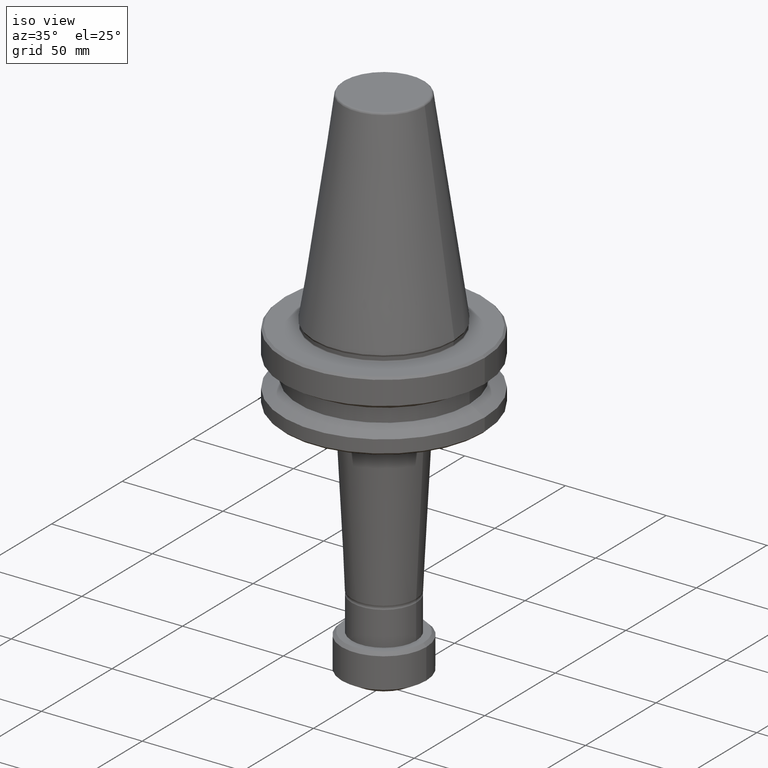
[diagram: clean part render]
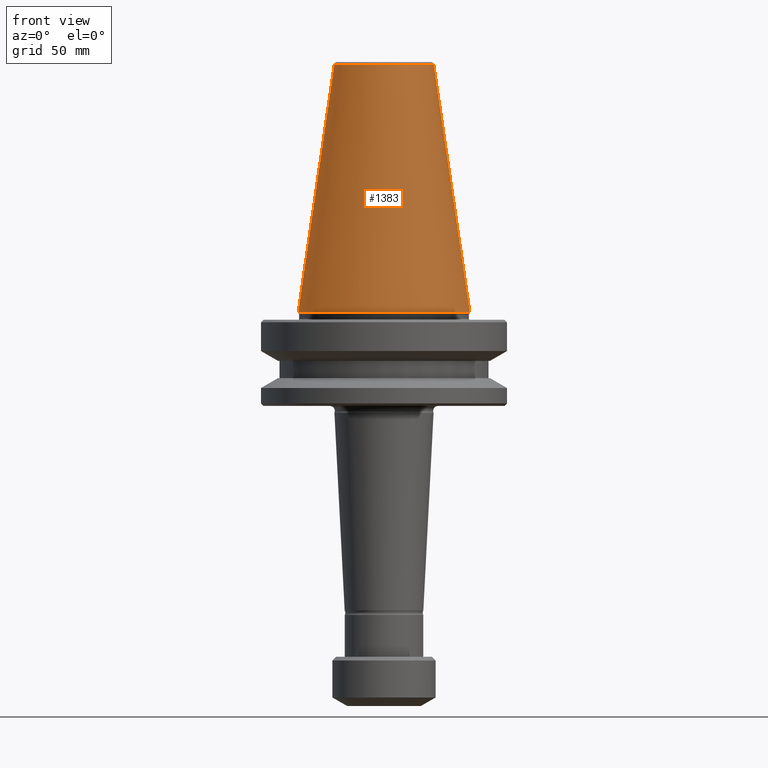
[diagram: tour spotlight — one face highlighted and labeled with its STEP entity id]
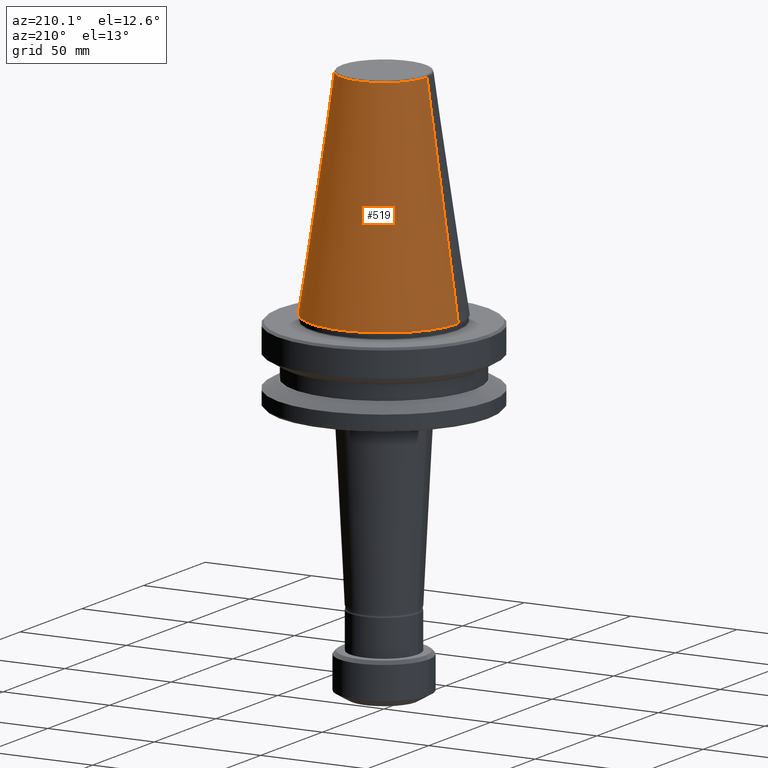
[diagram: tour spotlight — one face highlighted and labeled with its STEP entity id]
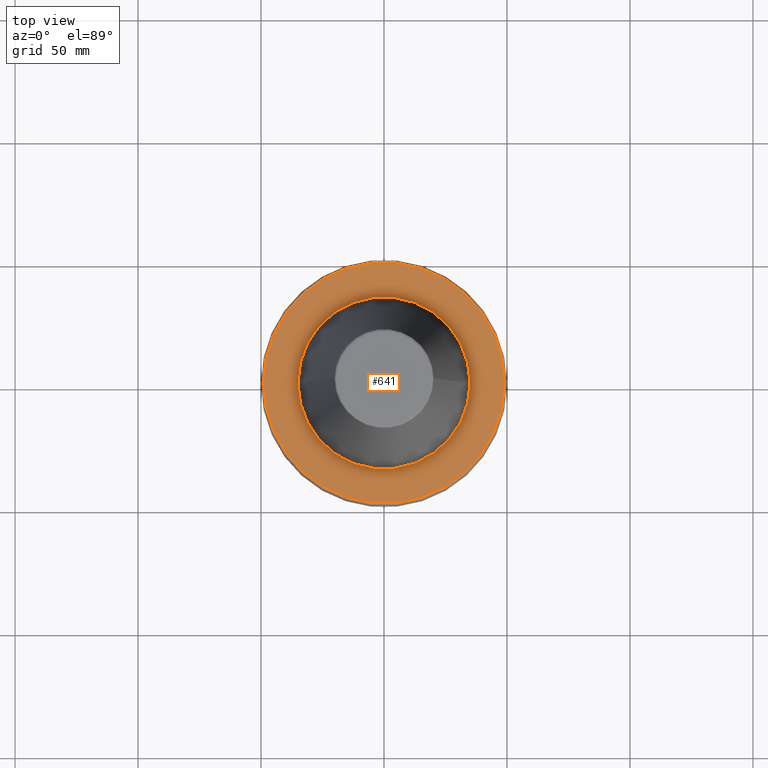
[diagram: tour spotlight — one face highlighted and labeled with its STEP entity id]
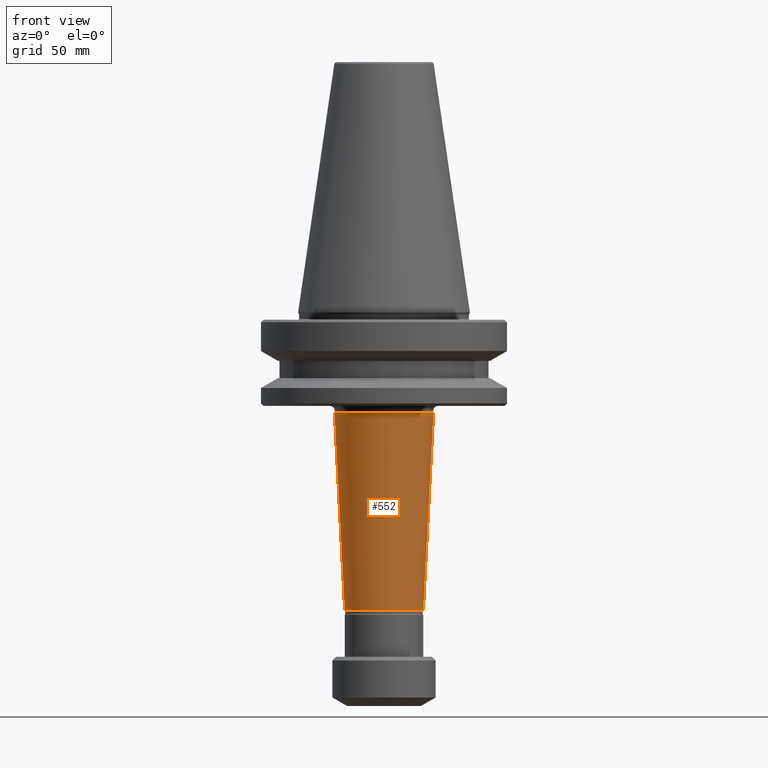
[diagram: tour spotlight — one face highlighted and labeled with its STEP entity id]
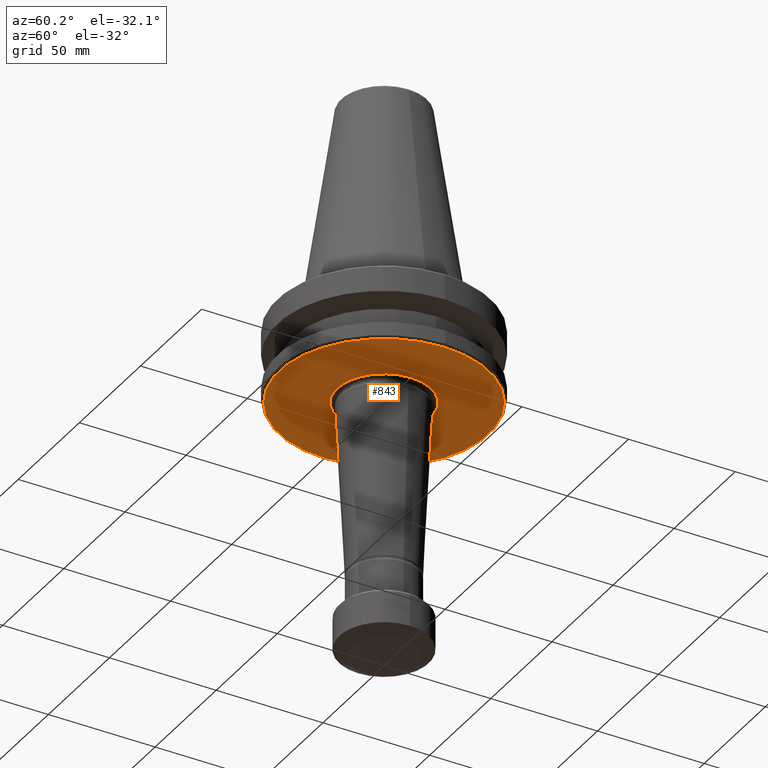
[diagram: tour spotlight — one face highlighted and labeled with its STEP entity id]
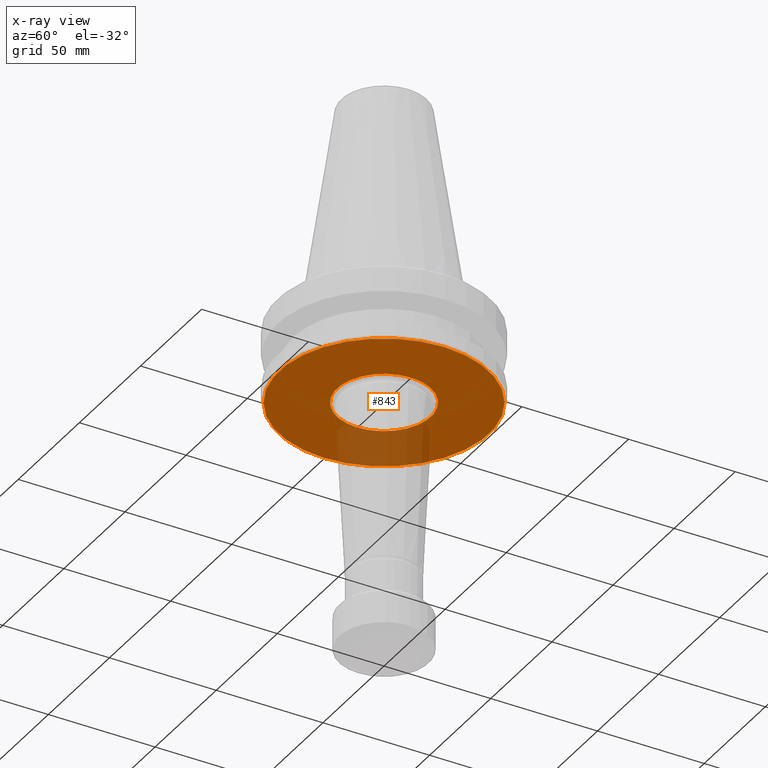
[diagram: x-ray of the same camera — body ghosted, this tour face saturated]
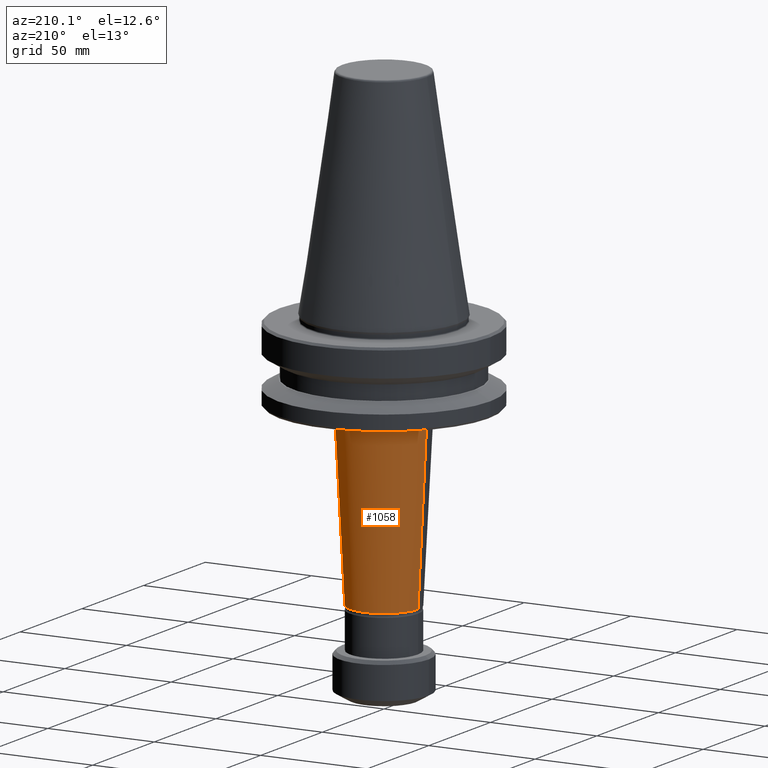
[diagram: tour spotlight — one face highlighted and labeled with its STEP entity id]
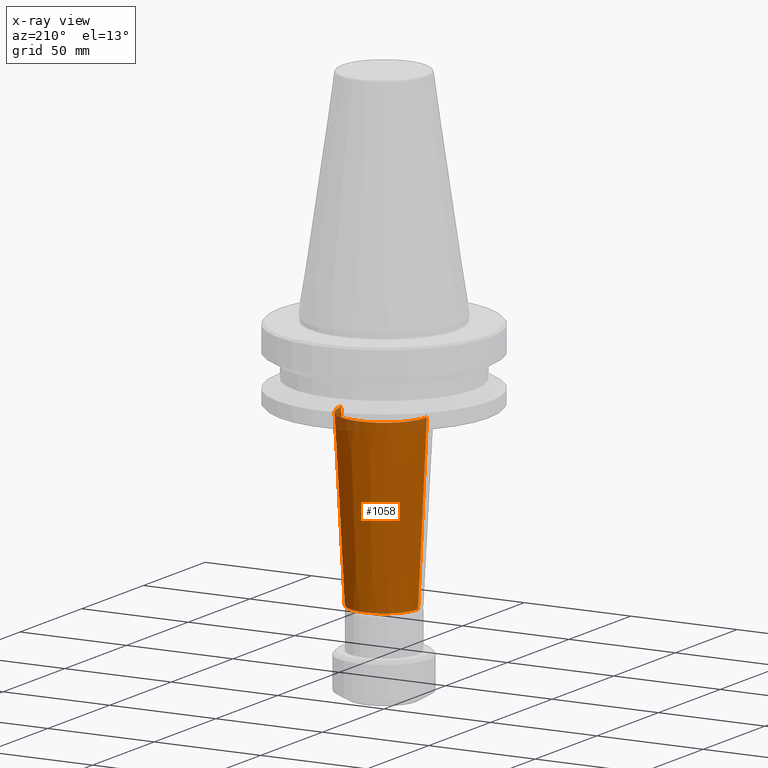
[diagram: x-ray of the same camera — body ghosted, this tour face saturated]
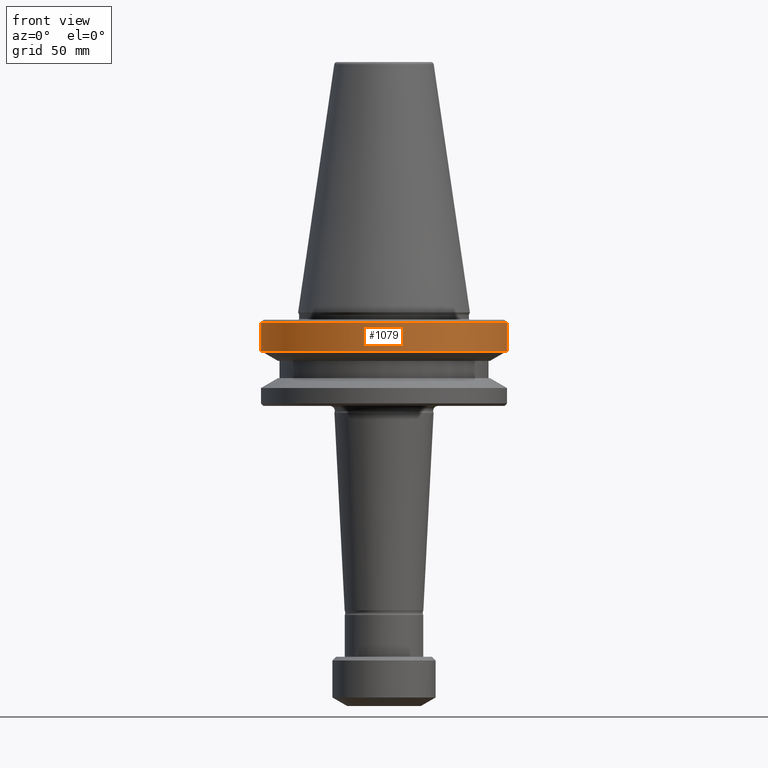
[diagram: tour spotlight — one face highlighted and labeled with its STEP entity id]
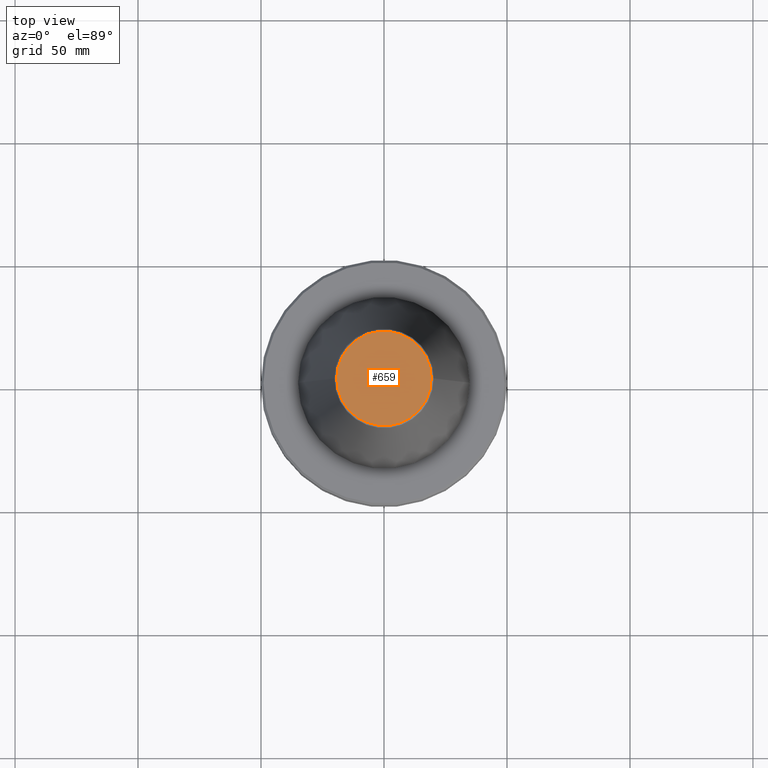
[diagram: tour spotlight — one face highlighted and labeled with its STEP entity id]
A machine part: a face-by-face anatomy tour. The part has 51 B-rep faces; the first image is the clean iso view, then the 8 largest visible faces are spotlighted one at a time (largest first), each with its STEP entity span.

Face 1 — front view, entity #1383. In plain terms, the highlighted conical surface has half-angle 8.297 deg.
Definition (entity closure, byte-faithful):
#3 = EDGE_CURVE ( 'NONE', #438, #47, #297, .T. ) ;
#47 = VERTEX_POINT ( 'NONE', #1028 ) ;
#55 = CARTESIAN_POINT ( 'NONE',  ( -20.20381645192170700, 0.0000000000000000000, 100.9443082234283700 ) ) ;
#58 = DIRECTION ( 'NONE',  ( -0.1443082234293907600, 0.0000000000000000000, -0.9895327870518757500 ) ) ;
#138 = CIRCLE ( 'NONE', #221, 34.92499999999964900 ) ;
#161 = EDGE_CURVE ( 'NONE', #389, #910, #167, .T. ) ;
#167 = LINE ( 'NONE', #1272, #981 ) ;
#197 = ORIENTED_EDGE ( 'NONE', *, *, #3, .T. ) ;
#221 = AXIS2_PLACEMENT_3D ( 'NONE', #1350, #1147, #1278 ) ;
#230 = DIRECTION ( 'NONE',  ( 1.000000000000000000, 0.0000000000000000000, 0.0000000000000000000 ) ) ;
#247 = ORIENTED_EDGE ( 'NONE', *, *, #161, .F. ) ;
#297 = LINE ( 'NONE', #892, #1386 ) ;
#324 = DIRECTION ( 'NONE',  ( 0.0000000000000000000, 0.0000000000000000000, -1.000000000000000000 ) ) ;
#369 = CONICAL_SURFACE ( 'NONE', #885, 34.92499999999964900, 0.1448138426689056000 ) ;
#389 = VERTEX_POINT ( 'NONE', #1201 ) ;
#390 = CARTESIAN_POINT ( 'NONE',  ( 34.92499999999964900, 0.0000000000000000000, -1.084202172485504400E-016 ) ) ;
#438 = VERTEX_POINT ( 'NONE', #55 ) ;
#619 = EDGE_CURVE ( 'NONE', #47, #910, #138, .T. ) ;
#732 = DIRECTION ( 'NONE',  ( -1.000000000000000000, 0.0000000000000000000, 0.0000000000000000000 ) ) ;
#760 = DIRECTION ( 'NONE',  ( -0.0000000000000000000, -0.0000000000000000000, 1.000000000000000000 ) ) ;
#764 = DIRECTION ( 'NONE',  ( 0.1443082234293907600, 1.767266039134444800E-017, -0.9895327870518757500 ) ) ;
#772 = EDGE_CURVE ( 'NONE', #438, #389, #1244, .T. ) ;
#844 = CARTESIAN_POINT ( 'NONE',  ( 0.0000000000000000000, 0.0000000000000000000, 0.0000000000000000000 ) ) ;
#885 = AXIS2_PLACEMENT_3D ( 'NONE', #844, #324, #732 ) ;
#892 = CARTESIAN_POINT ( 'NONE',  ( -34.92499999999964900, 0.0000000000000000000, 0.0000000000000000000 ) ) ;
#906 = AXIS2_PLACEMENT_3D ( 'NONE', #946, #760, #230 ) ;
#910 = VERTEX_POINT ( 'NONE', #390 ) ;
#946 = CARTESIAN_POINT ( 'NONE',  ( 0.0000000000000000000, 0.0000000000000000000, 100.9443082234283700 ) ) ;
#969 = FACE_OUTER_BOUND ( 'NONE', #1197, .T. ) ;
#981 = VECTOR ( 'NONE', #764, 1000.000000000000100 ) ;
#1028 = CARTESIAN_POINT ( 'NONE',  ( -34.92499999999964900, 4.277078946022088300E-015, -1.084202172485504400E-016 ) ) ;
#1137 = ORIENTED_EDGE ( 'NONE', *, *, #772, .F. ) ;
#1147 = DIRECTION ( 'NONE',  ( -0.0000000000000000000, -0.0000000000000000000, 1.000000000000000000 ) ) ;
#1197 = EDGE_LOOP ( 'NONE', ( #247, #1137, #197, #1215 ) ) ;
#1201 = CARTESIAN_POINT ( 'NONE',  ( 20.20381645192170700, 3.375666430431372200E-015, 100.9443082234283700 ) ) ;
#1215 = ORIENTED_EDGE ( 'NONE', *, *, #619, .T. ) ;
#1244 = CIRCLE ( 'NONE', #906, 20.20381645192170700 ) ;
#1272 = CARTESIAN_POINT ( 'NONE',  ( 34.92499999999964900, 4.277078946022088300E-015, 0.0000000000000000000 ) ) ;
#1278 = DIRECTION ( 'NONE',  ( 1.000000000000000000, 0.0000000000000000000, 0.0000000000000000000 ) ) ;
#1350 = CARTESIAN_POINT ( 'NONE',  ( 0.0000000000000000000, 0.0000000000000000000, 0.0000000000000000000 ) ) ;
#1383 = ADVANCED_FACE ( 'NONE', ( #969 ), #369, .T. ) ;
#1386 = VECTOR ( 'NONE', #58, 1000.000000000000100 ) ;

Face 2 — auxiliary view, entity #519. In plain terms, the highlighted conical surface has half-angle 8.297 deg.
Definition (entity closure, byte-faithful):
#3 = EDGE_CURVE ( 'NONE', #438, #47, #297, .T. ) ;
#47 = VERTEX_POINT ( 'NONE', #1028 ) ;
#55 = CARTESIAN_POINT ( 'NONE',  ( -20.20381645192170700, 0.0000000000000000000, 100.9443082234283700 ) ) ;
#58 = DIRECTION ( 'NONE',  ( -0.1443082234293907600, 0.0000000000000000000, -0.9895327870518757500 ) ) ;
#161 = EDGE_CURVE ( 'NONE', #389, #910, #167, .T. ) ;
#167 = LINE ( 'NONE', #1272, #981 ) ;
#196 = AXIS2_PLACEMENT_3D ( 'NONE', #690, #1313, #1072 ) ;
#204 = CONICAL_SURFACE ( 'NONE', #196, 34.92499999999964900, 0.1448138426689056000 ) ;
#256 = CIRCLE ( 'NONE', #541, 20.20381645192170700 ) ;
#297 = LINE ( 'NONE', #892, #1386 ) ;
#325 = EDGE_CURVE ( 'NONE', #910, #47, #1342, .T. ) ;
#343 = ORIENTED_EDGE ( 'NONE', *, *, #358, .F. ) ;
#358 = EDGE_CURVE ( 'NONE', #389, #438, #256, .T. ) ;
#389 = VERTEX_POINT ( 'NONE', #1201 ) ;
#390 = CARTESIAN_POINT ( 'NONE',  ( 34.92499999999964900, 0.0000000000000000000, -1.084202172485504400E-016 ) ) ;
#418 = ORIENTED_EDGE ( 'NONE', *, *, #161, .T. ) ;
#426 = DIRECTION ( 'NONE',  ( -0.0000000000000000000, -0.0000000000000000000, 1.000000000000000000 ) ) ;
#438 = VERTEX_POINT ( 'NONE', #55 ) ;
#519 = ADVANCED_FACE ( 'NONE', ( #859 ), #204, .T. ) ;
#541 = AXIS2_PLACEMENT_3D ( 'NONE', #655, #426, #773 ) ;
#646 = CARTESIAN_POINT ( 'NONE',  ( 0.0000000000000000000, 0.0000000000000000000, 0.0000000000000000000 ) ) ;
#655 = CARTESIAN_POINT ( 'NONE',  ( 0.0000000000000000000, 0.0000000000000000000, 100.9443082234283700 ) ) ;
#690 = CARTESIAN_POINT ( 'NONE',  ( 0.0000000000000000000, 0.0000000000000000000, 0.0000000000000000000 ) ) ;
#742 = AXIS2_PLACEMENT_3D ( 'NONE', #646, #1101, #770 ) ;
#764 = DIRECTION ( 'NONE',  ( 0.1443082234293907600, 1.767266039134444800E-017, -0.9895327870518757500 ) ) ;
#770 = DIRECTION ( 'NONE',  ( 1.000000000000000000, 0.0000000000000000000, 0.0000000000000000000 ) ) ;
#773 = DIRECTION ( 'NONE',  ( 1.000000000000000000, 0.0000000000000000000, 0.0000000000000000000 ) ) ;
#815 = EDGE_LOOP ( 'NONE', ( #343, #418, #1364, #1306 ) ) ;
#859 = FACE_OUTER_BOUND ( 'NONE', #815, .T. ) ;
#892 = CARTESIAN_POINT ( 'NONE',  ( -34.92499999999964900, 0.0000000000000000000, 0.0000000000000000000 ) ) ;
#910 = VERTEX_POINT ( 'NONE', #390 ) ;
#981 = VECTOR ( 'NONE', #764, 1000.000000000000100 ) ;
#1028 = CARTESIAN_POINT ( 'NONE',  ( -34.92499999999964900, 4.277078946022088300E-015, -1.084202172485504400E-016 ) ) ;
#1072 = DIRECTION ( 'NONE',  ( -1.000000000000000000, 0.0000000000000000000, 0.0000000000000000000 ) ) ;
#1101 = DIRECTION ( 'NONE',  ( -0.0000000000000000000, -0.0000000000000000000, 1.000000000000000000 ) ) ;
#1201 = CARTESIAN_POINT ( 'NONE',  ( 20.20381645192170700, 3.375666430431372200E-015, 100.9443082234283700 ) ) ;
#1272 = CARTESIAN_POINT ( 'NONE',  ( 34.92499999999964900, 4.277078946022088300E-015, 0.0000000000000000000 ) ) ;
#1306 = ORIENTED_EDGE ( 'NONE', *, *, #3, .F. ) ;
#1313 = DIRECTION ( 'NONE',  ( 0.0000000000000000000, 0.0000000000000000000, -1.000000000000000000 ) ) ;
#1342 = CIRCLE ( 'NONE', #742, 34.92499999999964900 ) ;
#1364 = ORIENTED_EDGE ( 'NONE', *, *, #325, .T. ) ;
#1386 = VECTOR ( 'NONE', #58, 1000.000000000000100 ) ;

Face 3 — top view, entity #641. In plain terms, the highlighted planar face has unit normal (0, 0, -1).
Definition (entity closure, byte-faithful):
#2 = VERTEX_POINT ( 'NONE', #974 ) ;
#24 = CARTESIAN_POINT ( 'NONE',  ( 0.0000000000000000000, 0.0000000000000000000, -3.000000000001376700 ) ) ;
#40 = PLANE ( 'NONE',  #96 ) ;
#80 = DIRECTION ( 'NONE',  ( 1.000000000000000000, 0.0000000000000000000, 0.0000000000000000000 ) ) ;
#96 = AXIS2_PLACEMENT_3D ( 'NONE', #556, #1061, #1324 ) ;
#120 = CIRCLE ( 'NONE', #293, 49.00000000000015600 ) ;
#121 = CIRCLE ( 'NONE', #668, 35.00000000000002800 ) ;
#178 = AXIS2_PLACEMENT_3D ( 'NONE', #518, #398, #469 ) ;
#207 = CARTESIAN_POINT ( 'NONE',  ( -35.00000000000002800, 4.286263797015739700E-015, -3.000000000001501500 ) ) ;
#225 = ORIENTED_EDGE ( 'NONE', *, *, #744, .T. ) ;
#251 = AXIS2_PLACEMENT_3D ( 'NONE', #346, #1260, #80 ) ;
#293 = AXIS2_PLACEMENT_3D ( 'NONE', #873, #606, #917 ) ;
#328 = ORIENTED_EDGE ( 'NONE', *, *, #838, .F. ) ;
#346 = CARTESIAN_POINT ( 'NONE',  ( 0.0000000000000000000, 0.0000000000000000000, -3.000000000001376700 ) ) ;
#398 = DIRECTION ( 'NONE',  ( -0.0000000000000000000, -0.0000000000000000000, 1.000000000000000000 ) ) ;
#404 = CARTESIAN_POINT ( 'NONE',  ( 35.00000000000002800, 0.0000000000000000000, -3.000000000001501500 ) ) ;
#411 = FACE_OUTER_BOUND ( 'NONE', #869, .T. ) ;
#458 = EDGE_CURVE ( 'NONE', #929, #2, #120, .T. ) ;
#469 = DIRECTION ( 'NONE',  ( 1.000000000000000000, 0.0000000000000000000, 0.0000000000000000000 ) ) ;
#518 = CARTESIAN_POINT ( 'NONE',  ( 0.0000000000000000000, 0.0000000000000000000, -3.000000000001376700 ) ) ;
#556 = CARTESIAN_POINT ( 'NONE',  ( 0.0000000000000000000, 49.00000000000015600, -3.000000000001362500 ) ) ;
#606 = DIRECTION ( 'NONE',  ( -0.0000000000000000000, -0.0000000000000000000, 1.000000000000000000 ) ) ;
#624 = DIRECTION ( 'NONE',  ( 1.000000000000000000, 0.0000000000000000000, 0.0000000000000000000 ) ) ;
#641 = ADVANCED_FACE ( 'NONE', ( #877, #411 ), #40, .F. ) ;
#668 = AXIS2_PLACEMENT_3D ( 'NONE', #24, #890, #624 ) ;
#744 = EDGE_CURVE ( 'NONE', #2, #929, #999, .T. ) ;
#752 = VERTEX_POINT ( 'NONE', #207 ) ;
#801 = ORIENTED_EDGE ( 'NONE', *, *, #458, .T. ) ;
#806 = ORIENTED_EDGE ( 'NONE', *, *, #1099, .F. ) ;
#819 = CARTESIAN_POINT ( 'NONE',  ( 49.00000000000015600, 6.062001655779417400E-015, -3.000000000001376700 ) ) ;
#838 = EDGE_CURVE ( 'NONE', #1109, #752, #121, .T. ) ;
#869 = EDGE_LOOP ( 'NONE', ( #225, #801 ) ) ;
#873 = CARTESIAN_POINT ( 'NONE',  ( 0.0000000000000000000, 0.0000000000000000000, -3.000000000001376700 ) ) ;
#877 = FACE_BOUND ( 'NONE', #1253, .T. ) ;
#890 = DIRECTION ( 'NONE',  ( -0.0000000000000000000, -0.0000000000000000000, 1.000000000000000000 ) ) ;
#904 = CIRCLE ( 'NONE', #251, 35.00000000000002800 ) ;
#917 = DIRECTION ( 'NONE',  ( 1.000000000000000000, 0.0000000000000000000, 0.0000000000000000000 ) ) ;
#929 = VERTEX_POINT ( 'NONE', #819 ) ;
#974 = CARTESIAN_POINT ( 'NONE',  ( -49.00000000000015600, 0.0000000000000000000, -3.000000000001376700 ) ) ;
#999 = CIRCLE ( 'NONE', #178, 49.00000000000015600 ) ;
#1061 = DIRECTION ( 'NONE',  ( 0.0000000000000000000, 0.0000000000000000000, -1.000000000000000000 ) ) ;
#1099 = EDGE_CURVE ( 'NONE', #752, #1109, #904, .T. ) ;
#1109 = VERTEX_POINT ( 'NONE', #404 ) ;
#1253 = EDGE_LOOP ( 'NONE', ( #328, #806 ) ) ;
#1260 = DIRECTION ( 'NONE',  ( -0.0000000000000000000, -0.0000000000000000000, 1.000000000000000000 ) ) ;
#1324 = DIRECTION ( 'NONE',  ( -1.000000000000000000, 0.0000000000000000000, -0.0000000000000000000 ) ) ;

Face 4 — front view, entity #552. In plain terms, the highlighted conical surface has half-angle 2.962 deg.
Definition (entity closure, byte-faithful):
#51 = VERTEX_POINT ( 'NONE', #1211 ) ;
#77 = CARTESIAN_POINT ( 'NONE',  ( 15.99745846617262000, 0.0000000000000000000, -121.1640713024667000 ) ) ;
#128 = AXIS2_PLACEMENT_3D ( 'NONE', #884, #1352, #693 ) ;
#137 = EDGE_CURVE ( 'NONE', #1005, #317, #1015, .T. ) ;
#187 = AXIS2_PLACEMENT_3D ( 'NONE', #269, #1176, #1203 ) ;
#269 = CARTESIAN_POINT ( 'NONE',  ( 0.0000000000000000000, 0.0000000000000000000, -121.1640713024667000 ) ) ;
#270 = CARTESIAN_POINT ( 'NONE',  ( 15.99745846617262800, 0.0000000000000000000, -121.1640713024667000 ) ) ;
#317 = VERTEX_POINT ( 'NONE', #992 ) ;
#355 = DIRECTION ( 'NONE',  ( -0.0000000000000000000, -0.0000000000000000000, 1.000000000000000000 ) ) ;
#367 = VECTOR ( 'NONE', #1152, 1000.000000000000000 ) ;
#393 = LINE ( 'NONE', #270, #367 ) ;
#443 = VECTOR ( 'NONE', #823, 1000.000000000000000 ) ;
#467 = ORIENTED_EDGE ( 'NONE', *, *, #891, .T. ) ;
#489 = ORIENTED_EDGE ( 'NONE', *, *, #840, .T. ) ;
#548 = CARTESIAN_POINT ( 'NONE',  ( 0.0000000000000000000, 0.0000000000000000000, -121.1640713024667000 ) ) ;
#552 = ADVANCED_FACE ( 'NONE', ( #982 ), #665, .T. ) ;
#569 = EDGE_CURVE ( 'NONE', #317, #51, #697, .T. ) ;
#588 = ORIENTED_EDGE ( 'NONE', *, *, #569, .F. ) ;
#665 = CONICAL_SURFACE ( 'NONE', #187, 15.99745846617262800, 0.05170255439092068300 ) ;
#693 = DIRECTION ( 'NONE',  ( 1.000000000000000000, 0.0000000000000000000, 0.0000000000000000000 ) ) ;
#697 = CIRCLE ( 'NONE', #128, 20.15735213949410100 ) ;
#736 = EDGE_LOOP ( 'NONE', ( #766, #467, #489, #588 ) ) ;
#766 = ORIENTED_EDGE ( 'NONE', *, *, #137, .F. ) ;
#791 = CARTESIAN_POINT ( 'NONE',  ( -15.99745846617262800, 1.959123630509103500E-015, -121.1640713024667000 ) ) ;
#823 = DIRECTION ( 'NONE',  ( -0.05167952265336712300, 6.328916199890917900E-018, 0.9986637206479066500 ) ) ;
#840 = EDGE_CURVE ( 'NONE', #1075, #51, #393, .T. ) ;
#884 = CARTESIAN_POINT ( 'NONE',  ( 0.0000000000000000000, 0.0000000000000000000, -40.77759170660226600 ) ) ;
#891 = EDGE_CURVE ( 'NONE', #1005, #1075, #1132, .T. ) ;
#982 = FACE_OUTER_BOUND ( 'NONE', #736, .T. ) ;
#992 = CARTESIAN_POINT ( 'NONE',  ( -20.15735213949410100, 2.468563677691750100E-015, -40.77759170660226600 ) ) ;
#1005 = VERTEX_POINT ( 'NONE', #1322 ) ;
#1015 = LINE ( 'NONE', #791, #443 ) ;
#1075 = VERTEX_POINT ( 'NONE', #77 ) ;
#1132 = CIRCLE ( 'NONE', #1357, 15.99745846617262800 ) ;
#1152 = DIRECTION ( 'NONE',  ( 0.05167952265336712300, 0.0000000000000000000, 0.9986637206479066500 ) ) ;
#1176 = DIRECTION ( 'NONE',  ( -0.0000000000000000000, -0.0000000000000000000, 1.000000000000000000 ) ) ;
#1203 = DIRECTION ( 'NONE',  ( 1.000000000000000000, 0.0000000000000000000, 0.0000000000000000000 ) ) ;
#1211 = CARTESIAN_POINT ( 'NONE',  ( 20.15735213949410100, 0.0000000000000000000, -40.77759170660226600 ) ) ;
#1322 = CARTESIAN_POINT ( 'NONE',  ( -15.99745846617262000, 1.959123630509102700E-015, -121.1640713024667000 ) ) ;
#1352 = DIRECTION ( 'NONE',  ( -0.0000000000000000000, -0.0000000000000000000, 1.000000000000000000 ) ) ;
#1357 = AXIS2_PLACEMENT_3D ( 'NONE', #548, #355, #1382 ) ;
#1382 = DIRECTION ( 'NONE',  ( 1.000000000000000000, 0.0000000000000000000, 0.0000000000000000000 ) ) ;

Face 5 — auxiliary view, entity #843. An x-ray twin of the same camera follows (body ghosted, this face saturated) — the face is partly hidden behind the body. In plain terms, the highlighted planar face has unit normal (0, -0, 1).
Definition (entity closure, byte-faithful):
#14 = CIRCLE ( 'NONE', #1347, 21.99999999999979700 ) ;
#70 = CARTESIAN_POINT ( 'NONE',  ( -49.00000000000015600, 6.062001655779417400E-015, -38.00000000000179800 ) ) ;
#150 = CIRCLE ( 'NONE', #240, 21.99999999999979700 ) ;
#169 = CIRCLE ( 'NONE', #456, 49.00000000000015600 ) ;
#218 = VERTEX_POINT ( 'NONE', #654 ) ;
#238 = CARTESIAN_POINT ( 'NONE',  ( 0.0000000000000000000, 0.0000000000000000000, -38.00000000000179800 ) ) ;
#240 = AXIS2_PLACEMENT_3D ( 'NONE', #829, #594, #536 ) ;
#304 = ORIENTED_EDGE ( 'NONE', *, *, #551, .F. ) ;
#333 = PLANE ( 'NONE',  #813 ) ;
#348 = EDGE_CURVE ( 'NONE', #1288, #558, #778, .T. ) ;
#428 = DIRECTION ( 'NONE',  ( -0.0000000000000000000, -0.0000000000000000000, 1.000000000000000000 ) ) ;
#435 = CARTESIAN_POINT ( 'NONE',  ( 49.00000000000015600, 0.0000000000000000000, -38.00000000000179800 ) ) ;
#456 = AXIS2_PLACEMENT_3D ( 'NONE', #238, #834, #788 ) ;
#513 = EDGE_CURVE ( 'NONE', #523, #218, #150, .T. ) ;
#523 = VERTEX_POINT ( 'NONE', #614 ) ;
#536 = DIRECTION ( 'NONE',  ( 1.000000000000000000, 0.0000000000000000000, 0.0000000000000000000 ) ) ;
#540 = CARTESIAN_POINT ( 'NONE',  ( 0.0000000000000000000, 0.0000000000000000000, -38.00000000000179800 ) ) ;
#551 = EDGE_CURVE ( 'NONE', #558, #1288, #169, .T. ) ;
#557 = ORIENTED_EDGE ( 'NONE', *, *, #513, .T. ) ;
#558 = VERTEX_POINT ( 'NONE', #70 ) ;
#594 = DIRECTION ( 'NONE',  ( -0.0000000000000000000, -0.0000000000000000000, 1.000000000000000000 ) ) ;
#601 = AXIS2_PLACEMENT_3D ( 'NONE', #1007, #428, #1175 ) ;
#611 = DIRECTION ( 'NONE',  ( 1.000000000000000000, 0.0000000000000000000, 0.0000000000000000000 ) ) ;
#614 = CARTESIAN_POINT ( 'NONE',  ( -21.99999999999979700, 2.694222958124152400E-015, -38.00000000000180500 ) ) ;
#654 = CARTESIAN_POINT ( 'NONE',  ( 21.99999999999979700, 0.0000000000000000000, -38.00000000000180500 ) ) ;
#681 = FACE_BOUND ( 'NONE', #1142, .T. ) ;
#778 = CIRCLE ( 'NONE', #601, 49.00000000000015600 ) ;
#788 = DIRECTION ( 'NONE',  ( 1.000000000000000000, 0.0000000000000000000, 0.0000000000000000000 ) ) ;
#813 = AXIS2_PLACEMENT_3D ( 'NONE', #1300, #1372, #880 ) ;
#829 = CARTESIAN_POINT ( 'NONE',  ( 0.0000000000000000000, 0.0000000000000000000, -38.00000000000179800 ) ) ;
#834 = DIRECTION ( 'NONE',  ( -0.0000000000000000000, -0.0000000000000000000, 1.000000000000000000 ) ) ;
#843 = ADVANCED_FACE ( 'NONE', ( #921, #681 ), #333, .F. ) ;
#863 = ORIENTED_EDGE ( 'NONE', *, *, #348, .F. ) ;
#880 = DIRECTION ( 'NONE',  ( 1.000000000000000000, 0.0000000000000000000, 0.0000000000000000000 ) ) ;
#921 = FACE_OUTER_BOUND ( 'NONE', #1268, .T. ) ;
#934 = EDGE_CURVE ( 'NONE', #218, #523, #14, .T. ) ;
#1007 = CARTESIAN_POINT ( 'NONE',  ( 0.0000000000000000000, 0.0000000000000000000, -38.00000000000179800 ) ) ;
#1142 = EDGE_LOOP ( 'NONE', ( #1257, #557 ) ) ;
#1169 = DIRECTION ( 'NONE',  ( -0.0000000000000000000, -0.0000000000000000000, 1.000000000000000000 ) ) ;
#1175 = DIRECTION ( 'NONE',  ( 1.000000000000000000, 0.0000000000000000000, 0.0000000000000000000 ) ) ;
#1257 = ORIENTED_EDGE ( 'NONE', *, *, #934, .T. ) ;
#1268 = EDGE_LOOP ( 'NONE', ( #863, #304 ) ) ;
#1288 = VERTEX_POINT ( 'NONE', #435 ) ;
#1300 = CARTESIAN_POINT ( 'NONE',  ( 0.0000000000000000000, 49.00000000000015600, -38.00000000000181200 ) ) ;
#1347 = AXIS2_PLACEMENT_3D ( 'NONE', #540, #1169, #611 ) ;
#1372 = DIRECTION ( 'NONE',  ( 0.0000000000000000000, -0.0000000000000000000, 1.000000000000000000 ) ) ;

Face 6 — auxiliary view, entity #1058. An x-ray twin of the same camera follows (body ghosted, this face saturated) — the face is partly hidden behind the body. In plain terms, the highlighted conical surface has half-angle 2.962 deg.
Definition (entity closure, byte-faithful):
#1 = ORIENTED_EDGE ( 'NONE', *, *, #530, .F. ) ;
#51 = VERTEX_POINT ( 'NONE', #1211 ) ;
#77 = CARTESIAN_POINT ( 'NONE',  ( 15.99745846617262000, 0.0000000000000000000, -121.1640713024667000 ) ) ;
#137 = EDGE_CURVE ( 'NONE', #1005, #317, #1015, .T. ) ;
#195 = DIRECTION ( 'NONE',  ( -0.0000000000000000000, -0.0000000000000000000, 1.000000000000000000 ) ) ;
#208 = AXIS2_PLACEMENT_3D ( 'NONE', #861, #712, #1062 ) ;
#217 = DIRECTION ( 'NONE',  ( 1.000000000000000000, 0.0000000000000000000, 0.0000000000000000000 ) ) ;
#270 = CARTESIAN_POINT ( 'NONE',  ( 15.99745846617262800, 0.0000000000000000000, -121.1640713024667000 ) ) ;
#317 = VERTEX_POINT ( 'NONE', #992 ) ;
#322 = FACE_OUTER_BOUND ( 'NONE', #1006, .T. ) ;
#367 = VECTOR ( 'NONE', #1152, 1000.000000000000000 ) ;
#393 = LINE ( 'NONE', #270, #367 ) ;
#443 = VECTOR ( 'NONE', #823, 1000.000000000000000 ) ;
#491 = AXIS2_PLACEMENT_3D ( 'NONE', #1297, #195, #217 ) ;
#530 = EDGE_CURVE ( 'NONE', #51, #317, #1018, .T. ) ;
#572 = DIRECTION ( 'NONE',  ( 1.000000000000000000, 0.0000000000000000000, 0.0000000000000000000 ) ) ;
#676 = DIRECTION ( 'NONE',  ( -0.0000000000000000000, -0.0000000000000000000, 1.000000000000000000 ) ) ;
#698 = CIRCLE ( 'NONE', #1282, 15.99745846617262800 ) ;
#712 = DIRECTION ( 'NONE',  ( -0.0000000000000000000, -0.0000000000000000000, 1.000000000000000000 ) ) ;
#791 = CARTESIAN_POINT ( 'NONE',  ( -15.99745846617262800, 1.959123630509103500E-015, -121.1640713024667000 ) ) ;
#823 = DIRECTION ( 'NONE',  ( -0.05167952265336712300, 6.328916199890917900E-018, 0.9986637206479066500 ) ) ;
#840 = EDGE_CURVE ( 'NONE', #1075, #51, #393, .T. ) ;
#861 = CARTESIAN_POINT ( 'NONE',  ( 0.0000000000000000000, 0.0000000000000000000, -40.77759170660226600 ) ) ;
#862 = ORIENTED_EDGE ( 'NONE', *, *, #995, .T. ) ;
#992 = CARTESIAN_POINT ( 'NONE',  ( -20.15735213949410100, 2.468563677691750100E-015, -40.77759170660226600 ) ) ;
#995 = EDGE_CURVE ( 'NONE', #1075, #1005, #698, .T. ) ;
#1005 = VERTEX_POINT ( 'NONE', #1322 ) ;
#1006 = EDGE_LOOP ( 'NONE', ( #862, #1294, #1, #1256 ) ) ;
#1015 = LINE ( 'NONE', #791, #443 ) ;
#1018 = CIRCLE ( 'NONE', #208, 20.15735213949410100 ) ;
#1058 = ADVANCED_FACE ( 'NONE', ( #322 ), #1380, .T. ) ;
#1062 = DIRECTION ( 'NONE',  ( 1.000000000000000000, 0.0000000000000000000, 0.0000000000000000000 ) ) ;
#1075 = VERTEX_POINT ( 'NONE', #77 ) ;
#1152 = DIRECTION ( 'NONE',  ( 0.05167952265336712300, 0.0000000000000000000, 0.9986637206479066500 ) ) ;
#1211 = CARTESIAN_POINT ( 'NONE',  ( 20.15735213949410100, 0.0000000000000000000, -40.77759170660226600 ) ) ;
#1256 = ORIENTED_EDGE ( 'NONE', *, *, #840, .F. ) ;
#1282 = AXIS2_PLACEMENT_3D ( 'NONE', #1362, #676, #572 ) ;
#1294 = ORIENTED_EDGE ( 'NONE', *, *, #137, .T. ) ;
#1297 = CARTESIAN_POINT ( 'NONE',  ( 0.0000000000000000000, 0.0000000000000000000, -121.1640713024667000 ) ) ;
#1322 = CARTESIAN_POINT ( 'NONE',  ( -15.99745846617262000, 1.959123630509102700E-015, -121.1640713024667000 ) ) ;
#1362 = CARTESIAN_POINT ( 'NONE',  ( 0.0000000000000000000, 0.0000000000000000000, -121.1640713024667000 ) ) ;
#1380 = CONICAL_SURFACE ( 'NONE', #491, 15.99745846617262800, 0.05170255439092068300 ) ;

Face 7 — front view, entity #1079. In plain terms, the highlighted cylindrical surface (partial cylindrical patch) has radius 50 mm, axis along (-0, -0, 1).
Definition (entity closure, byte-faithful):
#42 = ORIENTED_EDGE ( 'NONE', *, *, #410, .T. ) ;
#62 = DIRECTION ( 'NONE',  ( -0.0000000000000000000, -0.0000000000000000000, 1.000000000000000000 ) ) ;
#73 = CARTESIAN_POINT ( 'NONE',  ( 0.0000000000000000000, 0.0000000000000000000, -4.000000000001377600 ) ) ;
#156 = ORIENTED_EDGE ( 'NONE', *, *, #913, .F. ) ;
#259 = CYLINDRICAL_SURFACE ( 'NONE', #1384, 50.00000000000015600 ) ;
#291 = LINE ( 'NONE', #1130, #847 ) ;
#306 = CIRCLE ( 'NONE', #492, 50.00000000000015600 ) ;
#318 = CARTESIAN_POINT ( 'NONE',  ( 0.0000000000000000000, 0.0000000000000000000, -15.70022000322783600 ) ) ;
#334 = EDGE_CURVE ( 'NONE', #896, #822, #496, .T. ) ;
#335 = VERTEX_POINT ( 'NONE', #1301 ) ;
#410 = EDGE_CURVE ( 'NONE', #822, #335, #996, .T. ) ;
#492 = AXIS2_PLACEMENT_3D ( 'NONE', #73, #661, #539 ) ;
#496 = CIRCLE ( 'NONE', #751, 50.00000000000015600 ) ;
#539 = DIRECTION ( 'NONE',  ( 1.000000000000000000, 0.0000000000000000000, 0.0000000000000000000 ) ) ;
#566 = FACE_OUTER_BOUND ( 'NONE', #1131, .T. ) ;
#661 = DIRECTION ( 'NONE',  ( -0.0000000000000000000, -0.0000000000000000000, 1.000000000000000000 ) ) ;
#692 = ORIENTED_EDGE ( 'NONE', *, *, #1068, .F. ) ;
#751 = AXIS2_PLACEMENT_3D ( 'NONE', #318, #1021, #1293 ) ;
#822 = VERTEX_POINT ( 'NONE', #1136 ) ;
#847 = VECTOR ( 'NONE', #1187, 1000.000000000000000 ) ;
#896 = VERTEX_POINT ( 'NONE', #1059 ) ;
#913 = EDGE_CURVE ( 'NONE', #1045, #335, #306, .T. ) ;
#960 = VECTOR ( 'NONE', #961, 1000.000000000000000 ) ;
#961 = DIRECTION ( 'NONE',  ( -0.0000000000000000000, -0.0000000000000000000, 1.000000000000000000 ) ) ;
#972 = ORIENTED_EDGE ( 'NONE', *, *, #334, .T. ) ;
#996 = LINE ( 'NONE', #1216, #960 ) ;
#1021 = DIRECTION ( 'NONE',  ( -0.0000000000000000000, -0.0000000000000000000, 1.000000000000000000 ) ) ;
#1045 = VERTEX_POINT ( 'NONE', #1287 ) ;
#1059 = CARTESIAN_POINT ( 'NONE',  ( -50.00000000000015600, 6.123233995736785800E-015, -15.70022000322783600 ) ) ;
#1068 = EDGE_CURVE ( 'NONE', #896, #1045, #291, .T. ) ;
#1079 = ADVANCED_FACE ( 'NONE', ( #566 ), #259, .T. ) ;
#1130 = CARTESIAN_POINT ( 'NONE',  ( -50.00000000000015600, 6.123233995736785000E-015, 122.8463315447037200 ) ) ;
#1131 = EDGE_LOOP ( 'NONE', ( #692, #972, #42, #156 ) ) ;
#1135 = DIRECTION ( 'NONE',  ( 1.000000000000000000, 0.0000000000000000000, 0.0000000000000000000 ) ) ;
#1136 = CARTESIAN_POINT ( 'NONE',  ( 50.00000000000015600, 0.0000000000000000000, -15.70022000322783600 ) ) ;
#1187 = DIRECTION ( 'NONE',  ( -0.0000000000000000000, -0.0000000000000000000, 1.000000000000000000 ) ) ;
#1194 = CARTESIAN_POINT ( 'NONE',  ( 0.0000000000000000000, 0.0000000000000000000, 122.8463315447037200 ) ) ;
#1216 = CARTESIAN_POINT ( 'NONE',  ( 50.00000000000015600, 0.0000000000000000000, 122.8463315447037200 ) ) ;
#1287 = CARTESIAN_POINT ( 'NONE',  ( -50.00000000000015600, 6.123233995736785000E-015, -4.000000000001377600 ) ) ;
#1293 = DIRECTION ( 'NONE',  ( 1.000000000000000000, 0.0000000000000000000, 0.0000000000000000000 ) ) ;
#1301 = CARTESIAN_POINT ( 'NONE',  ( 50.00000000000015600, 0.0000000000000000000, -4.000000000001377600 ) ) ;
#1384 = AXIS2_PLACEMENT_3D ( 'NONE', #1194, #62, #1135 ) ;

Face 8 — top view, entity #659. In plain terms, the highlighted planar face has unit normal (0, 0, -1).
Definition (entity closure, byte-faithful):
#106 = AXIS2_PLACEMENT_3D ( 'NONE', #1057, #542, #802 ) ;
#213 = ORIENTED_EDGE ( 'NONE', *, *, #1102, .T. ) ;
#315 = PLANE ( 'NONE',  #106 ) ;
#433 = DIRECTION ( 'NONE',  ( -0.0000000000000000000, -0.0000000000000000000, 1.000000000000000000 ) ) ;
#445 = EDGE_CURVE ( 'NONE', #1060, #498, #1173, .T. ) ;
#486 = AXIS2_PLACEMENT_3D ( 'NONE', #625, #824, #1002 ) ;
#498 = VERTEX_POINT ( 'NONE', #1363 ) ;
#502 = CARTESIAN_POINT ( 'NONE',  ( 0.0000000000000000000, 0.0000000000000000000, 101.7999999999987600 ) ) ;
#535 = CIRCLE ( 'NONE', #599, 19.21428366486988200 ) ;
#542 = DIRECTION ( 'NONE',  ( 0.0000000000000000000, 0.0000000000000000000, -1.000000000000000000 ) ) ;
#599 = AXIS2_PLACEMENT_3D ( 'NONE', #502, #433, #1167 ) ;
#625 = CARTESIAN_POINT ( 'NONE',  ( 0.0000000000000000000, 0.0000000000000000000, 101.7999999999987600 ) ) ;
#659 = ADVANCED_FACE ( 'NONE', ( #810 ), #315, .F. ) ;
#779 = ORIENTED_EDGE ( 'NONE', *, *, #445, .T. ) ;
#802 = DIRECTION ( 'NONE',  ( -1.000000000000000000, 0.0000000000000000000, -0.0000000000000000000 ) ) ;
#810 = FACE_OUTER_BOUND ( 'NONE', #980, .T. ) ;
#824 = DIRECTION ( 'NONE',  ( -0.0000000000000000000, -0.0000000000000000000, 1.000000000000000000 ) ) ;
#980 = EDGE_LOOP ( 'NONE', ( #779, #213 ) ) ;
#1002 = DIRECTION ( 'NONE',  ( 1.000000000000000000, 0.0000000000000000000, 0.0000000000000000000 ) ) ;
#1057 = CARTESIAN_POINT ( 'NONE',  ( 0.0000000000000000000, 19.21428366486988200, 101.7999999999987800 ) ) ;
#1060 = VERTEX_POINT ( 'NONE', #1374 ) ;
#1102 = EDGE_CURVE ( 'NONE', #498, #1060, #535, .T. ) ;
#1167 = DIRECTION ( 'NONE',  ( 1.000000000000000000, 0.0000000000000000000, 0.0000000000000000000 ) ) ;
#1173 = CIRCLE ( 'NONE', #486, 19.21428366486988200 ) ;
#1363 = CARTESIAN_POINT ( 'NONE',  ( -19.21428366486988200, 2.413662506824936800E-015, 101.7999999999987600 ) ) ;
#1374 = CARTESIAN_POINT ( 'NONE',  ( 19.21428366486988200, 0.0000000000000000000, 101.7999999999987600 ) ) ;